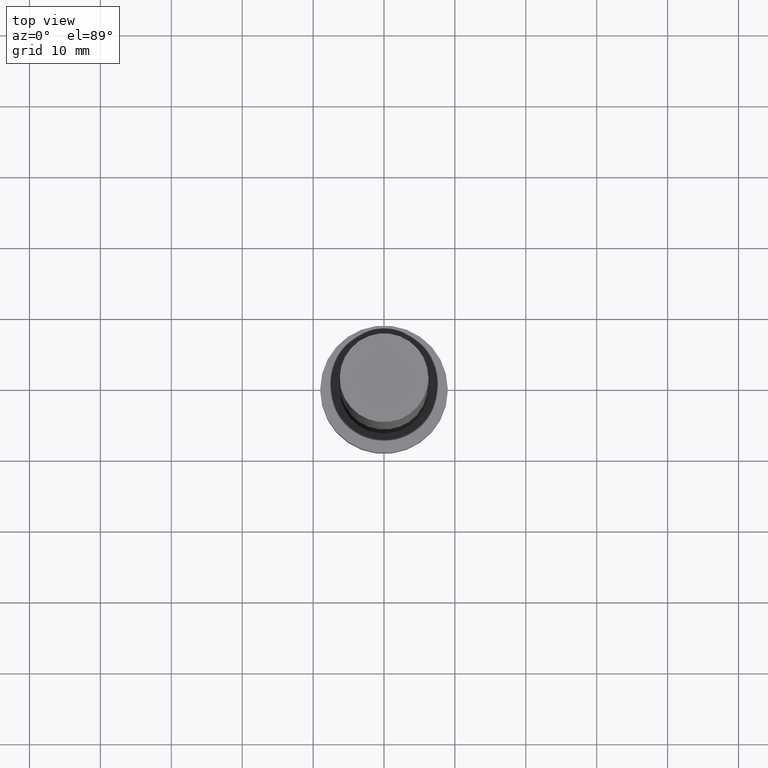
[diagram: clean part render]
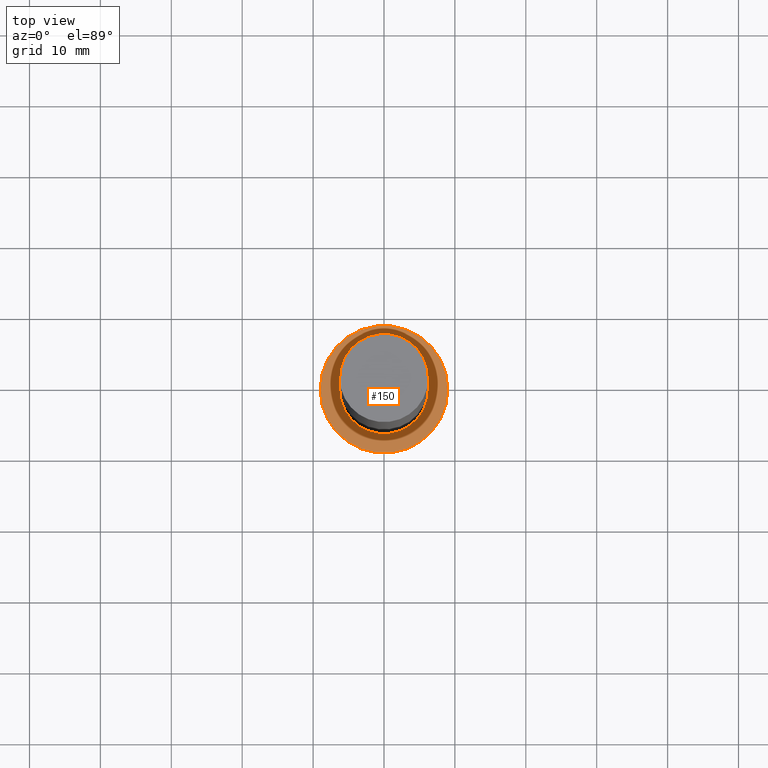
[diagram: same view with one face highlighted and labeled with its STEP entity id]
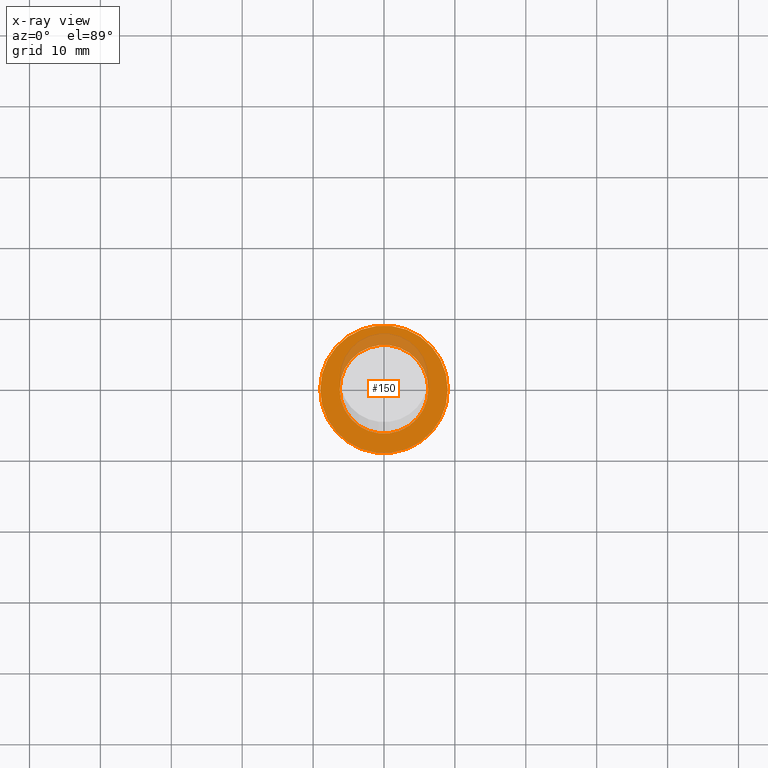
[diagram: x-ray of the same camera — body ghosted, the highlighted face saturated]
A machine part, top view. The second image highlights one B-rep face of the part: STEP entity #150.
The next image is the same camera in x-ray: the body ghosted, the highlighted face saturated — about 16% of this face is hidden behind the body in this view.
In plain terms, the highlighted planar face has unit normal (0, 0, 1).
Its self-contained STEP definition (entity closure, byte-faithful):
#6 = EDGE_LOOP ( 'NONE', ( #204, #61 ) ) ;
#10 = CIRCLE ( 'NONE', #250, 9.000000000000000000 ) ;
#13 = CIRCLE ( 'NONE', #39, 6.250000000000000000 ) ;
#14 = AXIS2_PLACEMENT_3D ( 'NONE', #144, #107, #52 ) ;
#15 = DIRECTION ( 'NONE',  ( 1.000000000000000000, 0.000000000000000000, -0.000000000000000000 ) ) ;
#17 = EDGE_CURVE ( 'NONE', #48, #43, #10, .T. ) ;
#33 = CARTESIAN_POINT ( 'NONE',  ( 9.000000000000000000, 1.102182119232617714E-15, 7.000000000000000000 ) ) ;
#35 = CARTESIAN_POINT ( 'NONE',  ( 0.000000000000000000, 0.000000000000000000, 7.000000000000000000 ) ) ;
#39 = AXIS2_PLACEMENT_3D ( 'NONE', #207, #188, #230 ) ;
#43 = VERTEX_POINT ( 'NONE', #33 ) ;
#48 = VERTEX_POINT ( 'NONE', #131 ) ;
#51 = EDGE_CURVE ( 'NONE', #43, #48, #164, .T. ) ;
#52 = DIRECTION ( 'NONE',  ( 1.000000000000000000, 0.000000000000000000, 0.000000000000000000 ) ) ;
#54 = PLANE ( 'NONE',  #238 ) ;
#60 = EDGE_CURVE ( 'NONE', #220, #139, #13, .T. ) ;
#61 = ORIENTED_EDGE ( 'NONE', *, *, #51, .T. ) ;
#69 = DIRECTION ( 'NONE',  ( 0.000000000000000000, 0.000000000000000000, 1.000000000000000000 ) ) ;
#93 = CARTESIAN_POINT ( 'NONE',  ( 6.250000000000000000, 7.654042494670955634E-16, 7.000000000000000000 ) ) ;
#104 = ORIENTED_EDGE ( 'NONE', *, *, #60, .F. ) ;
#107 = DIRECTION ( 'NONE',  ( 0.000000000000000000, 0.000000000000000000, 1.000000000000000000 ) ) ;
#108 = CARTESIAN_POINT ( 'NONE',  ( 0.000000000000000000, 0.000000000000000000, 7.000000000000000000 ) ) ;
#118 = EDGE_LOOP ( 'NONE', ( #141, #104 ) ) ;
#131 = CARTESIAN_POINT ( 'NONE',  ( -9.000000000000000000, 0.000000000000000000, 7.000000000000000000 ) ) ;
#135 = DIRECTION ( 'NONE',  ( 1.000000000000000000, 0.000000000000000000, 0.000000000000000000 ) ) ;
#139 = VERTEX_POINT ( 'NONE', #169 ) ;
#141 = ORIENTED_EDGE ( 'NONE', *, *, #160, .F. ) ;
#144 = CARTESIAN_POINT ( 'NONE',  ( 0.000000000000000000, 0.000000000000000000, 7.000000000000000000 ) ) ;
#146 = FACE_OUTER_BOUND ( 'NONE', #6, .T. ) ;
#150 = ADVANCED_FACE ( 'NONE', ( #249, #146 ), #54, .T. ) ;
#160 = EDGE_CURVE ( 'NONE', #139, #220, #173, .T. ) ;
#164 = CIRCLE ( 'NONE', #14, 9.000000000000000000 ) ;
#169 = CARTESIAN_POINT ( 'NONE',  ( -6.250000000000000000, 0.000000000000000000, 7.000000000000000000 ) ) ;
#170 = CARTESIAN_POINT ( 'NONE',  ( 0.000000000000000000, 0.000000000000000000, 7.000000000000000000 ) ) ;
#173 = CIRCLE ( 'NONE', #193, 6.250000000000000000 ) ;
#188 = DIRECTION ( 'NONE',  ( 0.000000000000000000, 0.000000000000000000, 1.000000000000000000 ) ) ;
#190 = DIRECTION ( 'NONE',  ( 0.000000000000000000, 0.000000000000000000, 1.000000000000000000 ) ) ;
#193 = AXIS2_PLACEMENT_3D ( 'NONE', #170, #252, #135 ) ;
#204 = ORIENTED_EDGE ( 'NONE', *, *, #17, .T. ) ;
#207 = CARTESIAN_POINT ( 'NONE',  ( 0.000000000000000000, 0.000000000000000000, 7.000000000000000000 ) ) ;
#210 = DIRECTION ( 'NONE',  ( 1.000000000000000000, 0.000000000000000000, 0.000000000000000000 ) ) ;
#220 = VERTEX_POINT ( 'NONE', #93 ) ;
#230 = DIRECTION ( 'NONE',  ( 1.000000000000000000, 0.000000000000000000, 0.000000000000000000 ) ) ;
#238 = AXIS2_PLACEMENT_3D ( 'NONE', #108, #190, #15 ) ;
#249 = FACE_BOUND ( 'NONE', #118, .T. ) ;
#250 = AXIS2_PLACEMENT_3D ( 'NONE', #35, #69, #210 ) ;
#252 = DIRECTION ( 'NONE',  ( 0.000000000000000000, 0.000000000000000000, 1.000000000000000000 ) ) ;